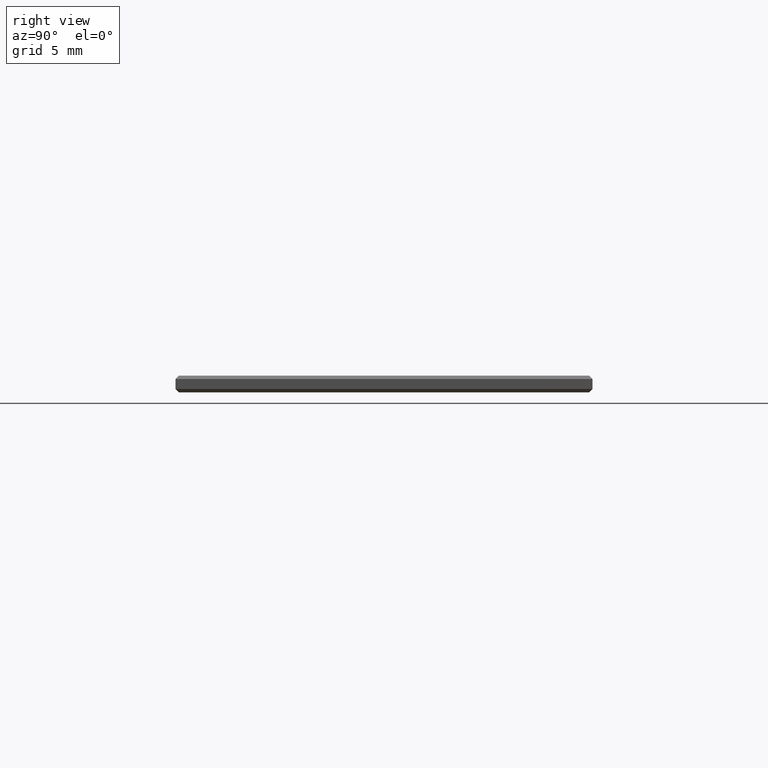
[diagram: clean part render]
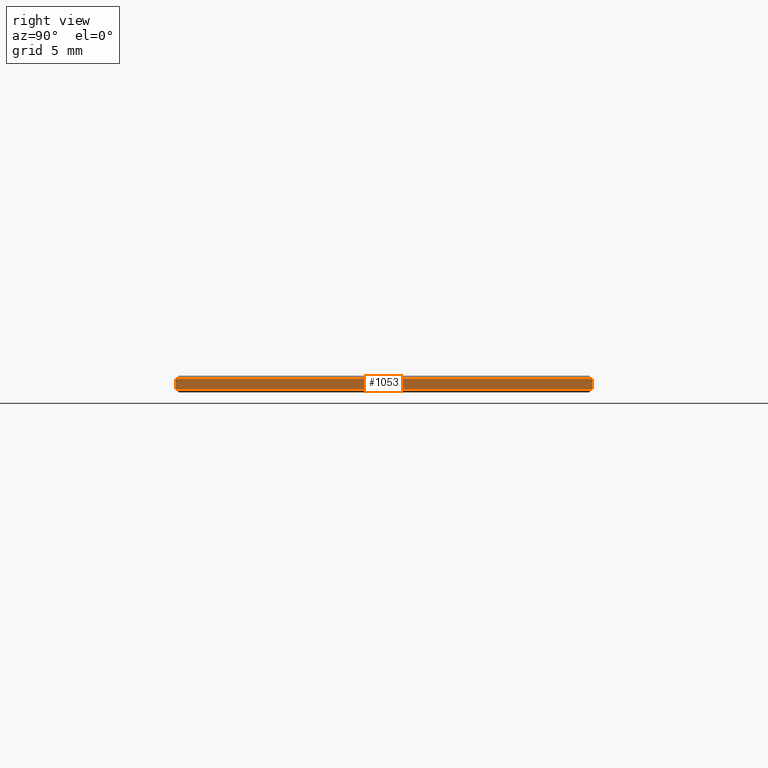
[diagram: same view with one face highlighted and labeled with its STEP entity id]
A machine part, right view. The second image highlights one B-rep face of the part: STEP entity #1053.
In plain terms, the highlighted planar face has unit normal (-1, -0, 0).
Its self-contained STEP definition (entity closure, byte-faithful):
#983 = VERTEX_POINT ( 'NONE', #3946 ) ;
#1015 = EDGE_CURVE ( 'NONE', #1034, #1022, #4008, .T. ) ;
#1022 = VERTEX_POINT ( 'NONE', #4074 ) ;
#1034 = VERTEX_POINT ( 'NONE', #4066 ) ;
#1038 = VERTEX_POINT ( 'NONE', #4065 ) ;
#1053 = ADVANCED_FACE ( 'NONE', ( #4149 ), #4099, .F. ) ;
#1057 = ORIENTED_EDGE ( 'NONE', *, *, #1058, .F. ) ;
#1058 = EDGE_CURVE ( 'NONE', #983, #1038, #4127, .T. ) ;
#1063 = EDGE_CURVE ( 'NONE', #1022, #1038, #4178, .T. ) ;
#1066 = ORIENTED_EDGE ( 'NONE', *, *, #1063, .T. ) ;
#1068 = EDGE_LOOP ( 'NONE', ( #1295, #1066, #1057, #1320 ) ) ;
#1274 = EDGE_CURVE ( 'NONE', #983, #1034, #4806, .T. ) ;
#1295 = ORIENTED_EDGE ( 'NONE', *, *, #1015, .T. ) ;
#1320 = ORIENTED_EDGE ( 'NONE', *, *, #1274, .T. ) ;
#3946 = CARTESIAN_POINT ( 'NONE',  ( 17.99999999999999600, 12.50000000000000200, 0.2999999999999942700 ) ) ;
#4008 = LINE ( 'NONE', #4036, #4035 ) ;
#4034 = DIRECTION ( 'NONE',  ( -0.0000000000000000000, -0.0000000000000000000, -1.000000000000000000 ) ) ;
#4035 = VECTOR ( 'NONE', #4034, 1000.000000000000000 ) ;
#4036 = CARTESIAN_POINT ( 'NONE',  ( 18.00000000000000400, -12.49999999999999800, 0.5000000000000000000 ) ) ;
#4065 = CARTESIAN_POINT ( 'NONE',  ( 17.99999999999999600, 12.50000000000000200, -0.3000000000000012100 ) ) ;
#4066 = CARTESIAN_POINT ( 'NONE',  ( 18.00000000000000400, -12.49999999999999800, 0.2999999999999942700 ) ) ;
#4074 = CARTESIAN_POINT ( 'NONE',  ( 18.00000000000000400, -12.49999999999999800, -0.3000000000000012100 ) ) ;
#4099 = PLANE ( 'NONE',  #4143 ) ;
#4124 = DIRECTION ( 'NONE',  ( -0.0000000000000000000, -0.0000000000000000000, -1.000000000000000000 ) ) ;
#4125 = VECTOR ( 'NONE', #4124, 1000.000000000000000 ) ;
#4126 = CARTESIAN_POINT ( 'NONE',  ( 17.99999999999999600, 12.50000000000000200, 0.5000000000000000000 ) ) ;
#4127 = LINE ( 'NONE', #4126, #4125 ) ;
#4130 = DIRECTION ( 'NONE',  ( 2.775557561562891400E-016, -1.000000000000000000, 0.0000000000000000000 ) ) ;
#4131 = DIRECTION ( 'NONE',  ( -1.000000000000000000, -2.775557561562891400E-016, 0.0000000000000000000 ) ) ;
#4143 = AXIS2_PLACEMENT_3D ( 'NONE', #4155, #4131, #4130 ) ;
#4149 = FACE_OUTER_BOUND ( 'NONE', #1068, .T. ) ;
#4155 = CARTESIAN_POINT ( 'NONE',  ( 17.99999999999999600, 12.50000000000000200, 0.5000000000000000000 ) ) ;
#4167 = DIRECTION ( 'NONE',  ( -2.775557561562891400E-016, 1.000000000000000000, -0.0000000000000000000 ) ) ;
#4168 = VECTOR ( 'NONE', #4167, 1000.000000000000000 ) ;
#4169 = CARTESIAN_POINT ( 'NONE',  ( 17.99999999999999600, 12.50000000000000200, -0.3000000000000012100 ) ) ;
#4178 = LINE ( 'NONE', #4169, #4168 ) ;
#4801 = DIRECTION ( 'NONE',  ( 2.775557561562891400E-016, -1.000000000000000000, 0.0000000000000000000 ) ) ;
#4802 = VECTOR ( 'NONE', #4801, 1000.000000000000000 ) ;
#4803 = CARTESIAN_POINT ( 'NONE',  ( 18.00000000000000400, -12.49999999999999800, 0.2999999999999942700 ) ) ;
#4806 = LINE ( 'NONE', #4803, #4802 ) ;